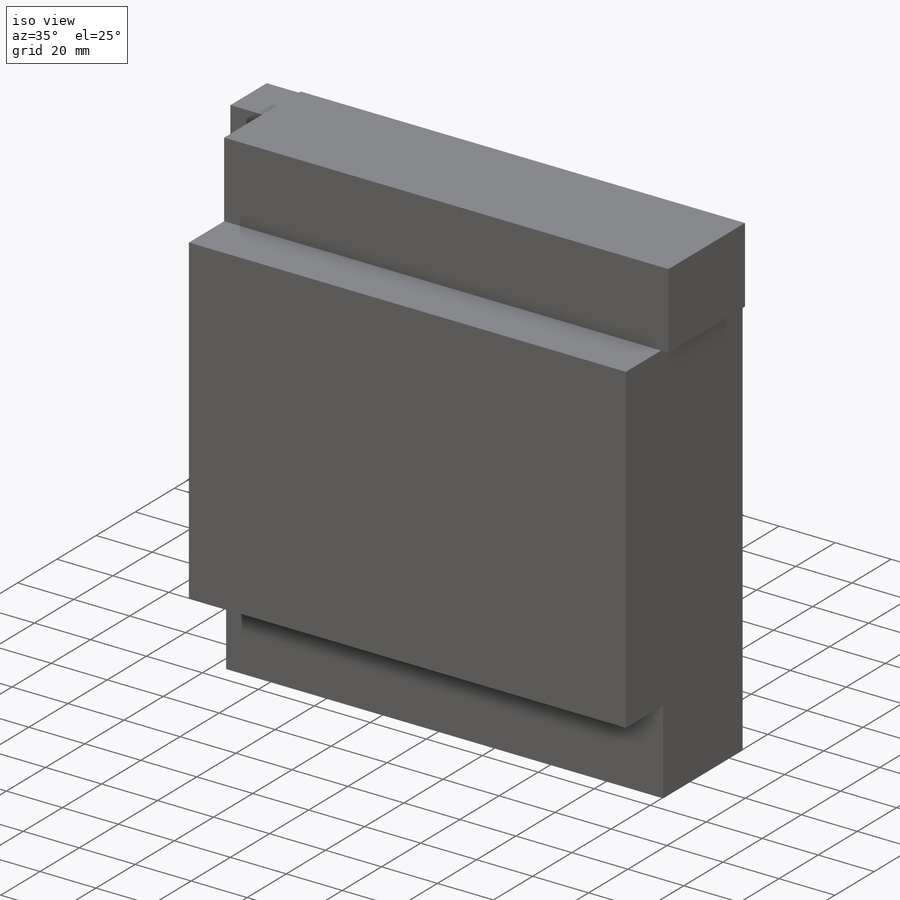
[diagram: iso view]
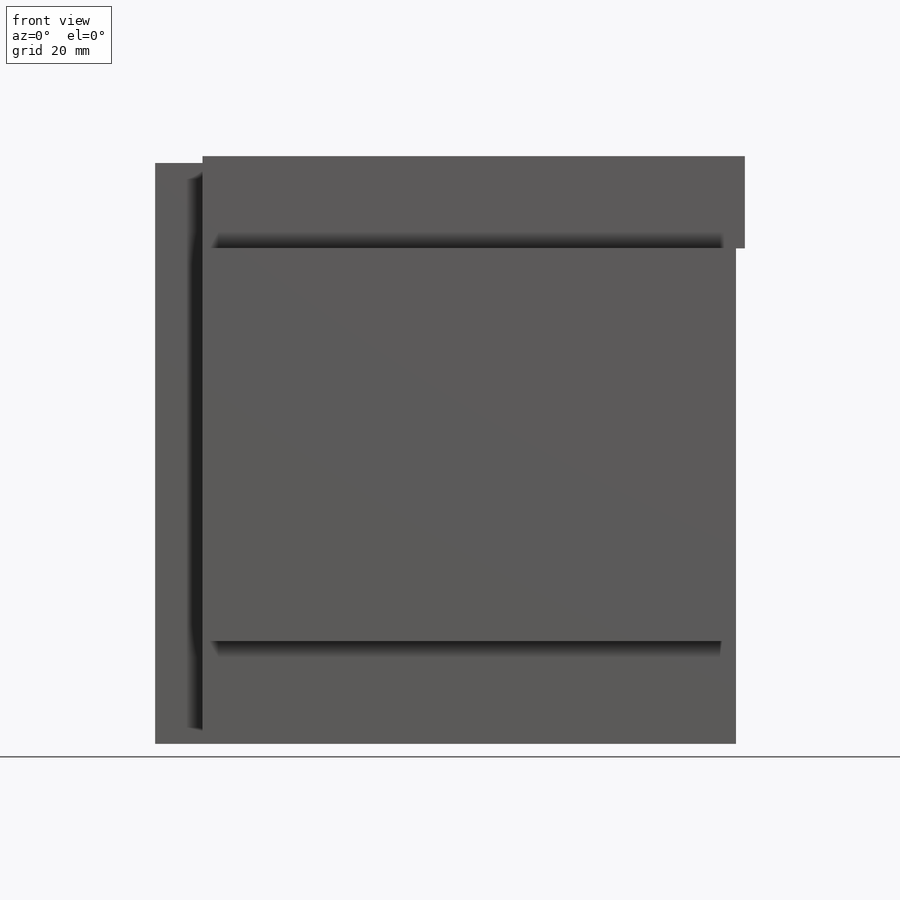
[diagram: front view]
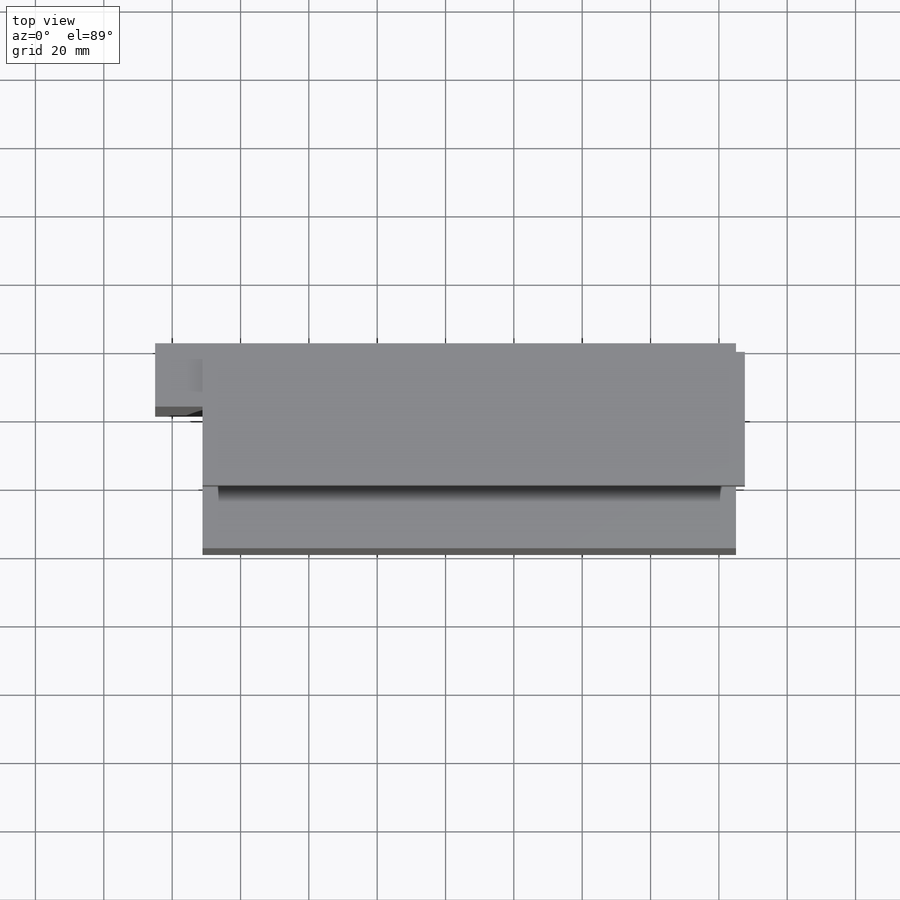
[diagram: top view]
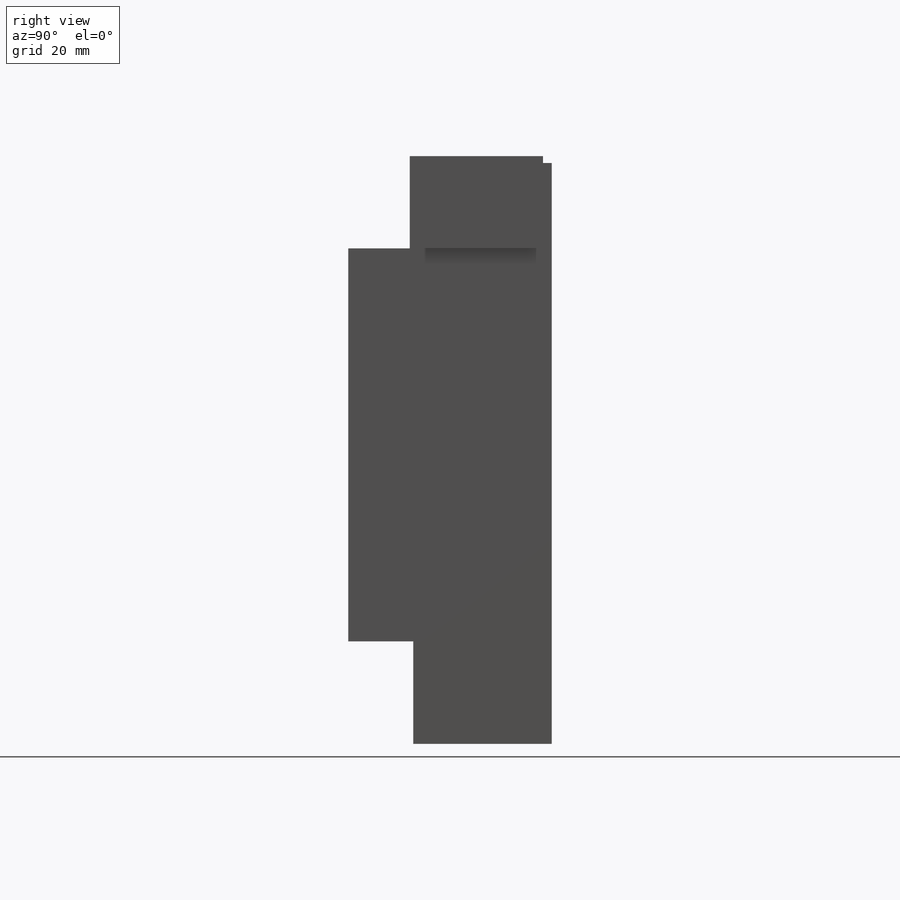
[diagram: right view]
SOLIDWORKS PART (.sldprt)
format: sldprt  version: not decoded by parser v0  size: 255,488 bytes
history: native  units: mm
features: sketch x5, extrude x5, material x1 (+11 scaffold rows collapsed)
feature tree (22):
  scaffold x11  (default folders/planes/origin — collapsed)
  material  "Material <not specified>"
  sketch  "Sketch1"  dims[D5=3.96mm D8=3.96mm D10=3.96mm D11=3.96mm D1=170.0mm D2=170.0mm D3=6.35mm D4=10.16mm D6=157.48mm D7=22.86mm D9=154.94mm]
  extrude  "Boss-Extrude1"  Depth=2.54mm
  sketch  "Sketch2"  dims[D1=158.75mm D2=7.52mm D3=27.0mm D4=172.0mm]
  extrude  "Boss-Extrude2"  Depth=39mm
  sketch  "Sketch4"
  extrude  "Boss-Extrude3"  Depth=16mm
  sketch  "Sketch6"  dims[D1=30.0mm]
  extrude  "Boss-Extrude4"  Depth=38mm
  sketch  "Sketch5"  dims[D1=~35.245222mm]
  extrude  "Boss-Extrude5"  Depth=57mm
decode coverage: 9 of 10 modeling features carry decoded parameters
note: ~ marks probable driven/reference dimensions
note: suppression state not decoded; provenance and decode notes live in map.json
